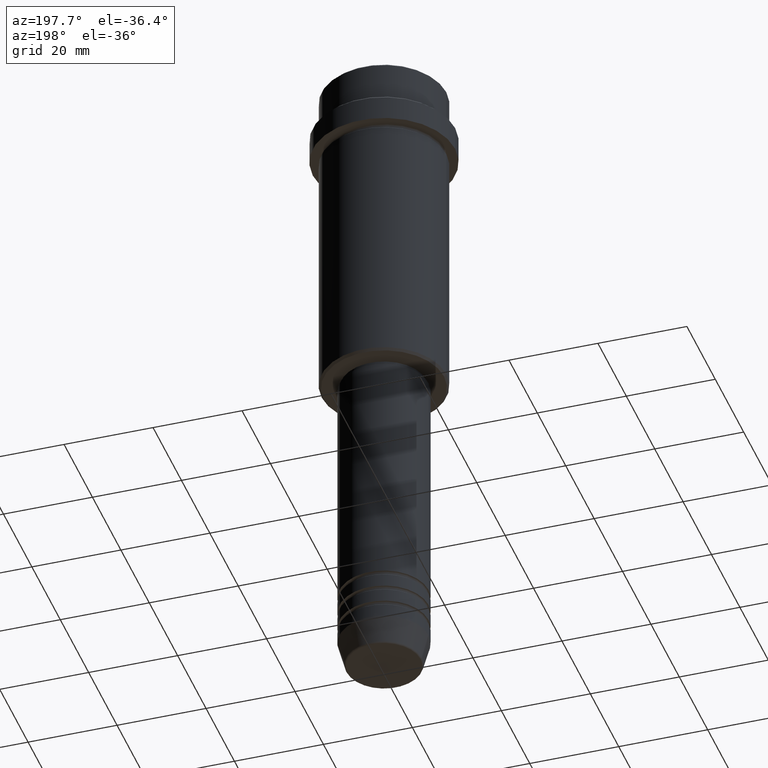
[diagram: clean part render]
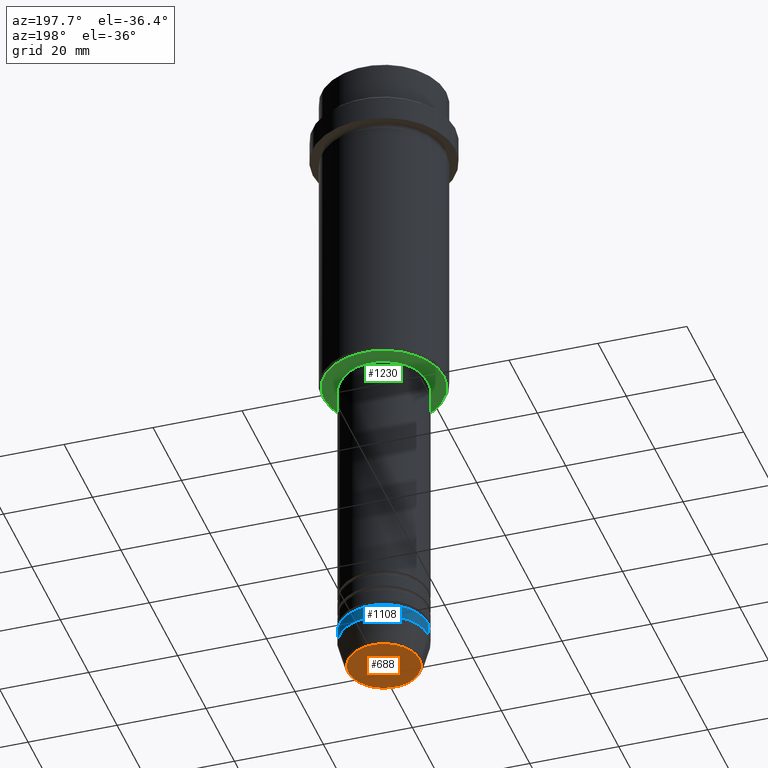
[diagram: same view with three faces highlighted in distinct colors, each labeled with its STEP entity id]
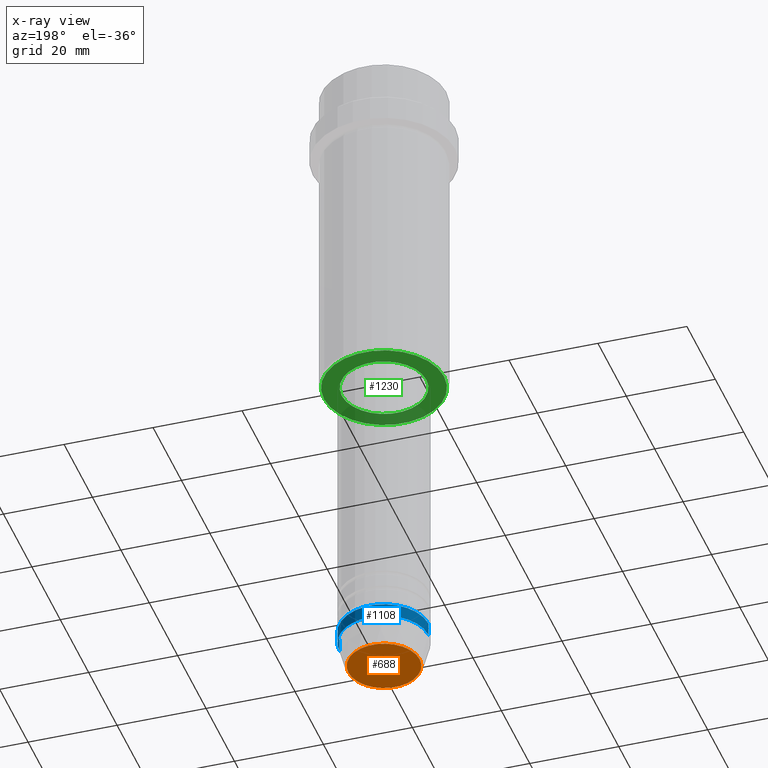
[diagram: x-ray of the same camera — body ghosted, the three highlighted faces saturated]
A machine part, auxiliary view with three faces highlighted in distinct colors.
The next image is the same camera in x-ray (body ghosted, the three faces saturated) — at least one of them is partly hidden behind the body in this view.
Their STEP definitions:

[orange] entity #688 — the highlighted planar face has unit normal (0, -0, 1).
#9 = DIRECTION ( 'NONE',  ( 0.000000000000000000, 0.000000000000000000, -1.000000000000000000 ) ) ;
#62 = CARTESIAN_POINT ( 'NONE',  ( -8.008641351423783306, 1.010348648938493172E-15, -150.0000000000000284 ) ) ;
#94 = CARTESIAN_POINT ( 'NONE',  ( 0.000000000000000000, 0.000000000000000000, -150.0000000000000284 ) ) ;
#175 = ORIENTED_EDGE ( 'NONE', *, *, #1252, .T. ) ;
#235 = CIRCLE ( 'NONE', #948, 8.008641351423783306 ) ;
#331 = PLANE ( 'NONE',  #363 ) ;
#363 = AXIS2_PLACEMENT_3D ( 'NONE', #768, #862, #432 ) ;
#426 = DIRECTION ( 'NONE',  ( 1.000000000000000000, 0.000000000000000000, 0.000000000000000000 ) ) ;
#432 = DIRECTION ( 'NONE',  ( 1.000000000000000000, 0.000000000000000000, 0.000000000000000000 ) ) ;
#488 = AXIS2_PLACEMENT_3D ( 'NONE', #94, #1411, #426 ) ;
#537 = CIRCLE ( 'NONE', #488, 8.008641351423783306 ) ;
#550 = VERTEX_POINT ( 'NONE', #1277 ) ;
#640 = ORIENTED_EDGE ( 'NONE', *, *, #747, .T. ) ;
#655 = FACE_OUTER_BOUND ( 'NONE', #854, .T. ) ;
#667 = DIRECTION ( 'NONE',  ( 1.000000000000000000, 0.000000000000000000, 0.000000000000000000 ) ) ;
#688 = ADVANCED_FACE ( 'NONE', ( #655 ), #331, .F. ) ;
#747 = EDGE_CURVE ( 'NONE', #1350, #550, #235, .T. ) ;
#768 = CARTESIAN_POINT ( 'NONE',  ( 0.000000000000000000, 0.000000000000000000, -150.0000000000000284 ) ) ;
#854 = EDGE_LOOP ( 'NONE', ( #175, #640 ) ) ;
#862 = DIRECTION ( 'NONE',  ( 0.000000000000000000, -0.000000000000000000, 1.000000000000000000 ) ) ;
#948 = AXIS2_PLACEMENT_3D ( 'NONE', #1214, #9, #667 ) ;
#1214 = CARTESIAN_POINT ( 'NONE',  ( 0.000000000000000000, 0.000000000000000000, -150.0000000000000284 ) ) ;
#1252 = EDGE_CURVE ( 'NONE', #550, #1350, #537, .T. ) ;
#1277 = CARTESIAN_POINT ( 'NONE',  ( 8.008641351423783306, 0.000000000000000000, -150.0000000000000284 ) ) ;
#1350 = VERTEX_POINT ( 'NONE', #62 ) ;
#1411 = DIRECTION ( 'NONE',  ( 0.000000000000000000, 0.000000000000000000, -1.000000000000000000 ) ) ;

[blue] entity #1108 — the highlighted cylindrical surface (partial cylindrical patch) has radius 10 mm, axis along (-0, -0, 1).
#3 = CARTESIAN_POINT ( 'NONE',  ( -10.00000000000000000, 1.224646799147353256E-15, -144.0000000000000284 ) ) ;
#25 = CARTESIAN_POINT ( 'NONE',  ( 0.000000000000000000, 0.000000000000000000, -144.0000000000000284 ) ) ;
#58 = CARTESIAN_POINT ( 'NONE',  ( 0.000000000000000000, 0.000000000000000000, 0.000000000000000000 ) ) ;
#117 = CARTESIAN_POINT ( 'NONE',  ( -10.00000000000000000, 1.224646799147353256E-15, 0.000000000000000000 ) ) ;
#183 = EDGE_LOOP ( 'NONE', ( #356, #415, #670, #184 ) ) ;
#184 = ORIENTED_EDGE ( 'NONE', *, *, #1045, .F. ) ;
#211 = DIRECTION ( 'NONE',  ( 1.000000000000000000, 0.000000000000000000, 0.000000000000000000 ) ) ;
#219 = AXIS2_PLACEMENT_3D ( 'NONE', #25, #899, #682 ) ;
#220 = VERTEX_POINT ( 'NONE', #288 ) ;
#228 = LINE ( 'NONE', #117, #1129 ) ;
#288 = CARTESIAN_POINT ( 'NONE',  ( -10.00000000000000000, 1.224646799147353256E-15, -141.0000000000000000 ) ) ;
#291 = LINE ( 'NONE', #1058, #394 ) ;
#314 = DIRECTION ( 'NONE',  ( -0.000000000000000000, -0.000000000000000000, 1.000000000000000000 ) ) ;
#324 = CIRCLE ( 'NONE', #219, 10.00000000000000000 ) ;
#335 = DIRECTION ( 'NONE',  ( -0.000000000000000000, -0.000000000000000000, 1.000000000000000000 ) ) ;
#356 = ORIENTED_EDGE ( 'NONE', *, *, #1387, .T. ) ;
#378 = CYLINDRICAL_SURFACE ( 'NONE', #1222, 10.00000000000000000 ) ;
#379 = CARTESIAN_POINT ( 'NONE',  ( 10.00000000000000000, 0.000000000000000000, -141.0000000000000000 ) ) ;
#384 = DIRECTION ( 'NONE',  ( -0.000000000000000000, -0.000000000000000000, 1.000000000000000000 ) ) ;
#394 = VECTOR ( 'NONE', #384, 1000.000000000000000 ) ;
#415 = ORIENTED_EDGE ( 'NONE', *, *, #696, .T. ) ;
#665 = VERTEX_POINT ( 'NONE', #379 ) ;
#666 = CARTESIAN_POINT ( 'NONE',  ( 0.000000000000000000, 0.000000000000000000, -141.0000000000000000 ) ) ;
#670 = ORIENTED_EDGE ( 'NONE', *, *, #1203, .F. ) ;
#681 = VERTEX_POINT ( 'NONE', #3 ) ;
#682 = DIRECTION ( 'NONE',  ( 1.000000000000000000, 0.000000000000000000, 0.000000000000000000 ) ) ;
#696 = EDGE_CURVE ( 'NONE', #681, #220, #228, .T. ) ;
#810 = CIRCLE ( 'NONE', #949, 10.00000000000000000 ) ;
#832 = VERTEX_POINT ( 'NONE', #900 ) ;
#899 = DIRECTION ( 'NONE',  ( -0.000000000000000000, -0.000000000000000000, 1.000000000000000000 ) ) ;
#900 = CARTESIAN_POINT ( 'NONE',  ( 10.00000000000000000, 0.000000000000000000, -144.0000000000000284 ) ) ;
#935 = DIRECTION ( 'NONE',  ( -0.000000000000000000, -0.000000000000000000, 1.000000000000000000 ) ) ;
#949 = AXIS2_PLACEMENT_3D ( 'NONE', #666, #335, #211 ) ;
#1045 = EDGE_CURVE ( 'NONE', #832, #665, #291, .T. ) ;
#1058 = CARTESIAN_POINT ( 'NONE',  ( 10.00000000000000000, 0.000000000000000000, 0.000000000000000000 ) ) ;
#1067 = FACE_OUTER_BOUND ( 'NONE', #183, .T. ) ;
#1108 = ADVANCED_FACE ( 'NONE', ( #1067 ), #378, .T. ) ;
#1129 = VECTOR ( 'NONE', #314, 1000.000000000000000 ) ;
#1203 = EDGE_CURVE ( 'NONE', #665, #220, #810, .T. ) ;
#1222 = AXIS2_PLACEMENT_3D ( 'NONE', #58, #935, #1254 ) ;
#1254 = DIRECTION ( 'NONE',  ( 1.000000000000000000, 0.000000000000000000, 0.000000000000000000 ) ) ;
#1387 = EDGE_CURVE ( 'NONE', #832, #681, #324, .T. ) ;

[green] entity #1230 — the highlighted planar face has unit normal (0, 0, -1).
#1 = DIRECTION ( 'NONE',  ( 0.000000000000000000, 0.000000000000000000, -1.000000000000000000 ) ) ;
#71 = DIRECTION ( 'NONE',  ( -0.000000000000000000, -0.000000000000000000, 1.000000000000000000 ) ) ;
#119 = AXIS2_PLACEMENT_3D ( 'NONE', #1024, #620, #822 ) ;
#197 = CARTESIAN_POINT ( 'NONE',  ( 0.000000000000000000, 0.000000000000000000, -76.00000000000000000 ) ) ;
#209 = EDGE_CURVE ( 'NONE', #1319, #455, #605, .T. ) ;
#255 = AXIS2_PLACEMENT_3D ( 'NONE', #1232, #493, #1134 ) ;
#282 = VERTEX_POINT ( 'NONE', #1104 ) ;
#300 = AXIS2_PLACEMENT_3D ( 'NONE', #329, #996, #527 ) ;
#316 = EDGE_LOOP ( 'NONE', ( #383, #1221 ) ) ;
#329 = CARTESIAN_POINT ( 'NONE',  ( 0.000000000000000000, 14.00000000000000000, -76.00000000000000000 ) ) ;
#383 = ORIENTED_EDGE ( 'NONE', *, *, #966, .T. ) ;
#455 = VERTEX_POINT ( 'NONE', #912 ) ;
#465 = CIRCLE ( 'NONE', #1016, 13.50000000000001243 ) ;
#493 = DIRECTION ( 'NONE',  ( -0.000000000000000000, -0.000000000000000000, 1.000000000000000000 ) ) ;
#508 = EDGE_CURVE ( 'NONE', #455, #1319, #851, .T. ) ;
#527 = DIRECTION ( 'NONE',  ( -1.000000000000000000, 0.000000000000000000, -0.000000000000000000 ) ) ;
#548 = FACE_OUTER_BOUND ( 'NONE', #316, .T. ) ;
#605 = CIRCLE ( 'NONE', #829, 9.499999999999996447 ) ;
#610 = CARTESIAN_POINT ( 'NONE',  ( 0.000000000000000000, 0.000000000000000000, -76.00000000000000000 ) ) ;
#620 = DIRECTION ( 'NONE',  ( 0.000000000000000000, 0.000000000000000000, -1.000000000000000000 ) ) ;
#642 = PLANE ( 'NONE',  #300 ) ;
#679 = ORIENTED_EDGE ( 'NONE', *, *, #209, .T. ) ;
#684 = CARTESIAN_POINT ( 'NONE',  ( -13.50000000000001243, 1.683889348827610851E-15, -76.00000000000000000 ) ) ;
#739 = CIRCLE ( 'NONE', #119, 13.50000000000001243 ) ;
#822 = DIRECTION ( 'NONE',  ( -1.000000000000000000, 0.000000000000000000, 0.000000000000000000 ) ) ;
#824 = EDGE_LOOP ( 'NONE', ( #679, #1307 ) ) ;
#829 = AXIS2_PLACEMENT_3D ( 'NONE', #610, #71, #841 ) ;
#841 = DIRECTION ( 'NONE',  ( 1.000000000000000000, 0.000000000000000000, 0.000000000000000000 ) ) ;
#851 = CIRCLE ( 'NONE', #255, 9.499999999999996447 ) ;
#859 = FACE_BOUND ( 'NONE', #824, .T. ) ;
#912 = CARTESIAN_POINT ( 'NONE',  ( -9.499999999999996447, 1.163414459189985091E-15, -76.00000000000000000 ) ) ;
#919 = VERTEX_POINT ( 'NONE', #684 ) ;
#966 = EDGE_CURVE ( 'NONE', #282, #919, #739, .T. ) ;
#996 = DIRECTION ( 'NONE',  ( 0.000000000000000000, 0.000000000000000000, -1.000000000000000000 ) ) ;
#1016 = AXIS2_PLACEMENT_3D ( 'NONE', #197, #1, #1096 ) ;
#1024 = CARTESIAN_POINT ( 'NONE',  ( 0.000000000000000000, 0.000000000000000000, -76.00000000000000000 ) ) ;
#1096 = DIRECTION ( 'NONE',  ( -1.000000000000000000, 0.000000000000000000, 0.000000000000000000 ) ) ;
#1104 = CARTESIAN_POINT ( 'NONE',  ( 13.50000000000001243, 0.000000000000000000, -76.00000000000000000 ) ) ;
#1134 = DIRECTION ( 'NONE',  ( 1.000000000000000000, 0.000000000000000000, 0.000000000000000000 ) ) ;
#1141 = EDGE_CURVE ( 'NONE', #919, #282, #465, .T. ) ;
#1213 = CARTESIAN_POINT ( 'NONE',  ( 9.499999999999996447, 0.000000000000000000, -76.00000000000000000 ) ) ;
#1221 = ORIENTED_EDGE ( 'NONE', *, *, #1141, .T. ) ;
#1230 = ADVANCED_FACE ( 'NONE', ( #548, #859 ), #642, .T. ) ;
#1232 = CARTESIAN_POINT ( 'NONE',  ( 0.000000000000000000, 0.000000000000000000, -76.00000000000000000 ) ) ;
#1307 = ORIENTED_EDGE ( 'NONE', *, *, #508, .T. ) ;
#1319 = VERTEX_POINT ( 'NONE', #1213 ) ;